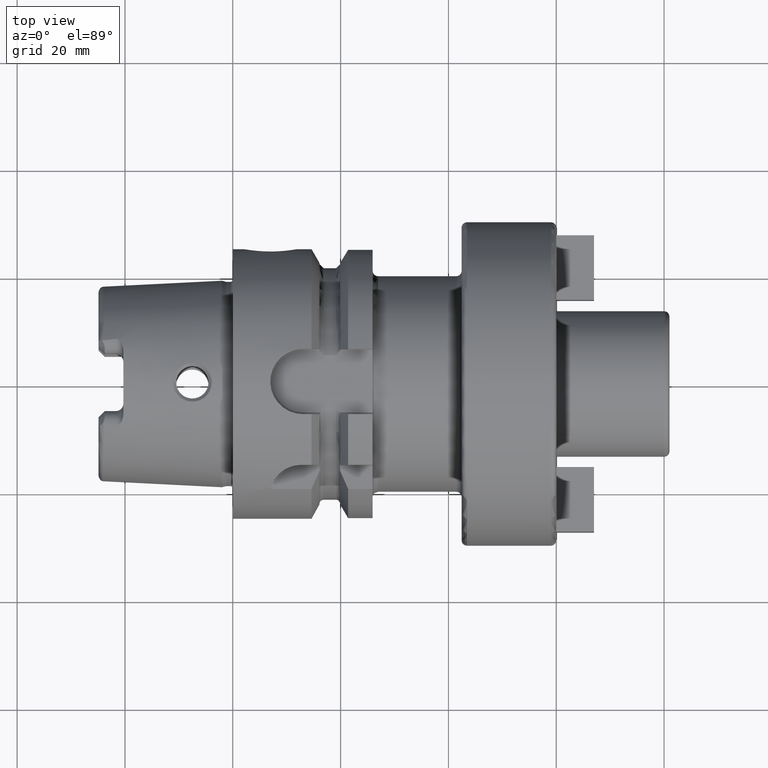
[diagram: clean part render]
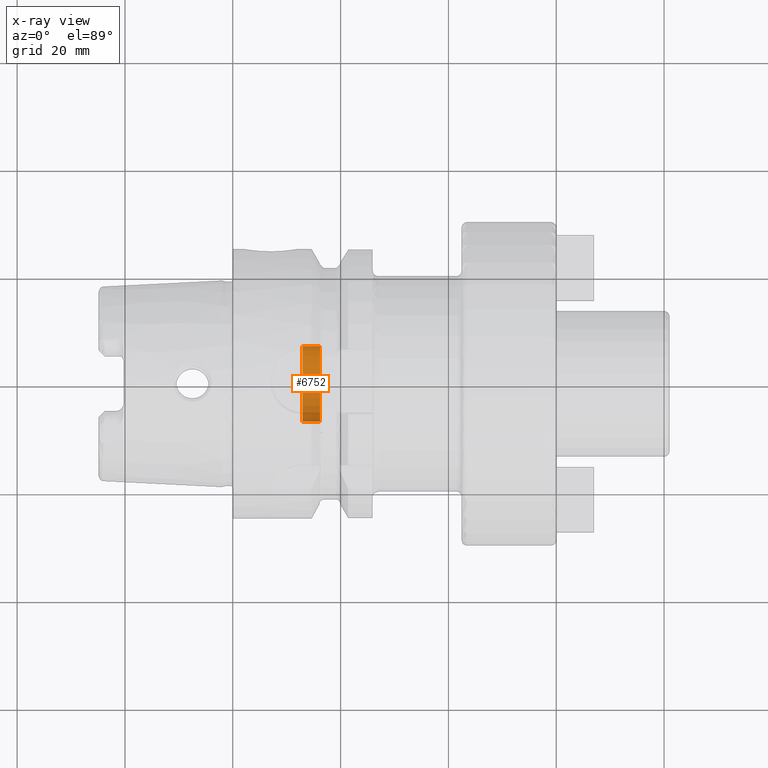
[diagram: x-ray — body ghosted, one internal face saturated and labeled with its STEP entity id]
A machine part, top view, then the same camera in x-ray: the body is ghosted and one INTERNAL B-rep face — a face not visible from any outside direction — is saturated and labeled: STEP entity #6752.
In plain terms, the highlighted cylindrical surface (partial cylindrical patch) has radius 7 mm, axis along (-1, 0, 0).
Its self-contained STEP definition (entity closure, byte-faithful):
#2643=DIRECTION('',(-1.E0,0.E0,0.E0));
#2644=VECTOR('',#2643,3.2375E0);
#2645=CARTESIAN_POINT('',(1.62E1,7.E0,0.E0));
#2646=LINE('',#2645,#2644);
#2647=DIRECTION('',(-1.E0,0.E0,0.E0));
#2648=VECTOR('',#2647,3.2375E0);
#2649=CARTESIAN_POINT('',(1.62E1,-7.E0,0.E0));
#2650=LINE('',#2649,#2648);
#2651=CARTESIAN_POINT('',(1.62E1,0.E0,0.E0));
#2652=DIRECTION('',(-1.E0,0.E0,0.E0));
#2653=DIRECTION('',(0.E0,1.E0,0.E0));
#2654=AXIS2_PLACEMENT_3D('',#2651,#2652,#2653);
#2737=CARTESIAN_POINT('',(1.29625E1,0.E0,0.E0));
#2738=DIRECTION('',(-1.E0,0.E0,0.E0));
#2739=DIRECTION('',(0.E0,1.E0,0.E0));
#2740=AXIS2_PLACEMENT_3D('',#2737,#2738,#2739);
#3373=CARTESIAN_POINT('',(1.62E1,7.E0,0.E0));
#3374=CARTESIAN_POINT('',(1.29625E1,7.E0,0.E0));
#3375=VERTEX_POINT('',#3373);
#3376=VERTEX_POINT('',#3374);
#3377=CARTESIAN_POINT('',(1.62E1,-7.E0,0.E0));
#3378=CARTESIAN_POINT('',(1.29625E1,-7.E0,0.E0));
#3379=VERTEX_POINT('',#3377);
#3380=VERTEX_POINT('',#3378);
#6739=CARTESIAN_POINT('',(2.329132554985E1,0.E0,0.E0));
#6740=DIRECTION('',(-1.E0,0.E0,0.E0));
#6741=DIRECTION('',(0.E0,1.E0,0.E0));
#6742=AXIS2_PLACEMENT_3D('',#6739,#6740,#6741);
#6743=CYLINDRICAL_SURFACE('',#6742,7.E0);
#6744=ORIENTED_EDGE('',*,*,#6729,.F.);
#6746=ORIENTED_EDGE('',*,*,#6745,.T.);
#6747=ORIENTED_EDGE('',*,*,#6732,.T.);
#6749=ORIENTED_EDGE('',*,*,#6748,.F.);
#6750=EDGE_LOOP('',(#6744,#6746,#6747,#6749));
#6751=FACE_OUTER_BOUND('',#6750,.F.);
#6752=ADVANCED_FACE('',(#6751),#6743,.F.);
#2655=CIRCLE('',#2654,7.E0);
#2741=CIRCLE('',#2740,7.E0);
#6729=EDGE_CURVE('',#3375,#3376,#2646,.T.);
#6732=EDGE_CURVE('',#3379,#3380,#2650,.T.);
#6745=EDGE_CURVE('',#3375,#3379,#2655,.T.);
#6748=EDGE_CURVE('',#3376,#3380,#2741,.T.);